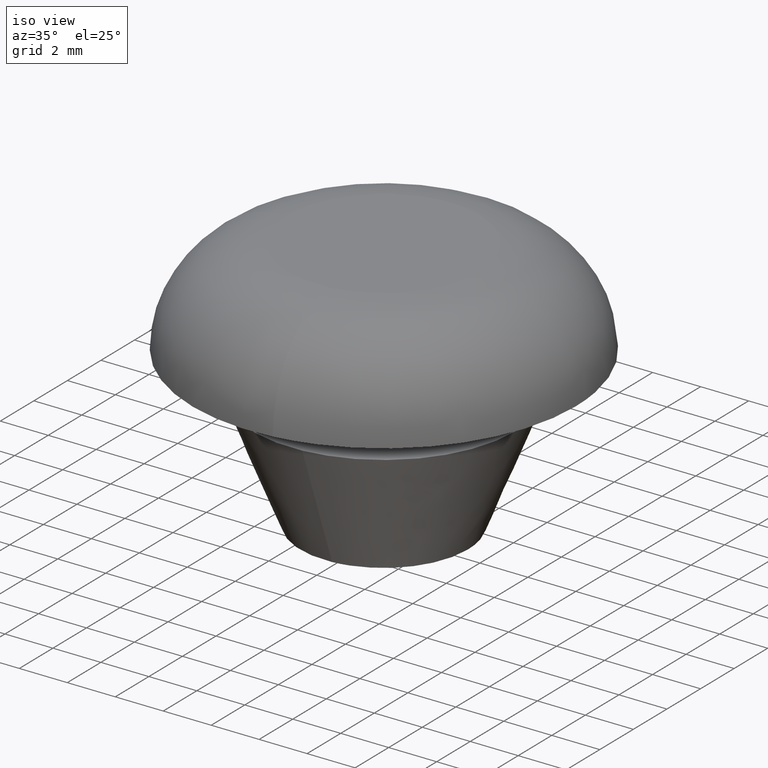
[diagram: clean part render]
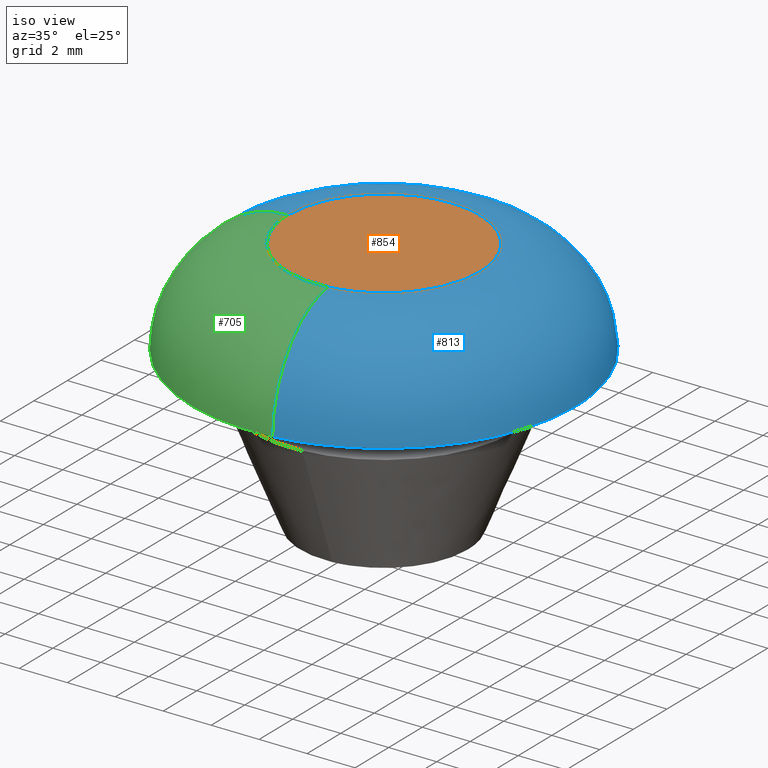
[diagram: same view with three faces highlighted in distinct colors, each labeled with its STEP entity id]
A machine part, iso view with three faces highlighted in distinct colors.
Their STEP definitions:

[orange] entity #854 — the highlighted face is a freeform B-spline surface patch.
#639=CARTESIAN_POINT('',(0.461853265926444,-3.973246979579745,10.600000000000000));
#640=VERTEX_POINT('',#639);
#641=CARTESIAN_POINT('',(-4.0,0.0,10.600000000000000));
#642=VERTEX_POINT('',#641);
#643=CARTESIAN_POINT('',(0.461853265926444,-3.973246979579744,10.599999999999998));
#644=CARTESIAN_POINT('',(0.231701472240553,-4.0,10.600000000000001));
#645=CARTESIAN_POINT('',(0.0,-4.0,10.600000000000000));
#646=CARTESIAN_POINT('',(-4.000000000000000,-4.000000000000000,10.600000000000000));
#647=CARTESIAN_POINT('',(-4.0,0.0,10.600000000000000));
#655=(BOUNDED_CURVE()B_SPLINE_CURVE(2,(#643,#644,#645,#646,#647),.UNSPECIFIED.,.F.,.U.)B_SPLINE_CURVE_WITH_KNOTS((3,2,3),(0.730000155452255,0.750000000000000,1.0),.UNSPECIFIED.)CURVE()GEOMETRIC_REPRESENTATION_ITEM()RATIONAL_B_SPLINE_CURVE((0.956886424158610,0.976568724618569,1.0,0.707106781186548,1.0))REPRESENTATION_ITEM(''));
#656=EDGE_CURVE('',#640,#642,#655,.T.);
#749=CARTESIAN_POINT('',(4.0,0.0,10.600000000000000));
#750=VERTEX_POINT('',#749);
#751=CARTESIAN_POINT('',(4.0,0.0,10.600000000000000));
#752=CARTESIAN_POINT('',(4.000000000000001,-3.561970098769044,10.600000000000000));
#753=CARTESIAN_POINT('',(0.461853265926444,-3.973246979579744,10.599999999999998));
#761=(BOUNDED_CURVE()B_SPLINE_CURVE(2,(#751,#752,#753),.UNSPECIFIED.,.F.,.U.)B_SPLINE_CURVE_WITH_KNOTS((3,3),(0.500000000000000,0.730000155452255),.UNSPECIFIED.)CURVE()GEOMETRIC_REPRESENTATION_ITEM()RATIONAL_B_SPLINE_CURVE((1.0,0.730538056567979,0.956886424158610))REPRESENTATION_ITEM(''));
#762=EDGE_CURVE('',#750,#640,#761,.T.);
#796=CARTESIAN_POINT('',(-4.0,0.0,10.600000000000000));
#797=CARTESIAN_POINT('',(-4.000000000000000,4.000000000000000,10.600000000000000));
#798=CARTESIAN_POINT('',(0.0,4.0,10.600000000000000));
#799=CARTESIAN_POINT('',(4.000000000000000,4.000000000000000,10.600000000000000));
#800=CARTESIAN_POINT('',(4.0,0.0,10.600000000000000));
#808=(BOUNDED_CURVE()B_SPLINE_CURVE(2,(#796,#797,#798,#799,#800),.UNSPECIFIED.,.F.,.U.)B_SPLINE_CURVE_WITH_KNOTS((3,2,3),(0.0,0.250000000000000,0.500000000000000),.UNSPECIFIED.)CURVE()GEOMETRIC_REPRESENTATION_ITEM()RATIONAL_B_SPLINE_CURVE((1.0,0.707106781186548,1.0,0.707106781186548,1.0))REPRESENTATION_ITEM(''));
#809=EDGE_CURVE('',#642,#750,#808,.T.);
#844=CARTESIAN_POINT('',(-4.399599984494448,-4.399577509031040,10.600000000000000));
#845=CARTESIAN_POINT('',(4.399600199071169,-4.399577509031040,10.600000000000000));
#846=CARTESIAN_POINT('',(-4.399599984494448,4.399599129781110,10.600000000000000));
#847=CARTESIAN_POINT('',(4.399600199071169,4.399599129781110,10.600000000000000));
#848=B_SPLINE_SURFACE_WITH_KNOTS('',1,1,((#844,#846),(#845,#847)),.UNSPECIFIED.,.F.,.F.,.U.,(2,2),(2,2),(0.0,8.799200183565617),(0.0,8.799176638812149),.UNSPECIFIED.);
#849=ORIENTED_EDGE('',*,*,#656,.F.);
#850=ORIENTED_EDGE('',*,*,#762,.F.);
#851=ORIENTED_EDGE('',*,*,#809,.F.);
#852=EDGE_LOOP('',(#849,#850,#851));
#853=FACE_OUTER_BOUND('',#852,.T.);
#854=ADVANCED_FACE('',(#853),#848,.T.);

[blue] entity #813 — the highlighted face is a freeform B-spline surface patch.
#639=CARTESIAN_POINT('',(0.461853265926444,-3.973246979579745,10.600000000000000));
#640=VERTEX_POINT('',#639);
#641=CARTESIAN_POINT('',(-4.0,0.0,10.600000000000000));
#642=VERTEX_POINT('',#641);
#658=CARTESIAN_POINT('',(-8.0,0.0,6.600000000000000));
#659=VERTEX_POINT('',#658);
#660=CARTESIAN_POINT('',(-8.0,0.0,6.600000000000000));
#661=CARTESIAN_POINT('',(-8.0,0.0,10.600000000000001));
#662=CARTESIAN_POINT('',(-3.999999999999999,0.0,10.600000000000000));
#670=(BOUNDED_CURVE()B_SPLINE_CURVE(2,(#660,#661,#662),.UNSPECIFIED.,.F.,.U.)B_SPLINE_CURVE_WITH_KNOTS((3,3),(0.0,0.250000000000000),.UNSPECIFIED.)CURVE()GEOMETRIC_REPRESENTATION_ITEM()RATIONAL_B_SPLINE_CURVE((1.0,0.707106781186547,1.0))REPRESENTATION_ITEM(''));
#671=EDGE_CURVE('',#659,#642,#670,.T.);
#673=CARTESIAN_POINT('',(0.923713520469362,-7.946493146797648,6.600000000000000));
#674=VERTEX_POINT('',#673);
#690=CARTESIAN_POINT('',(0.923713520469362,-7.946493146797648,6.600000000000001));
#691=CARTESIAN_POINT('',(0.923711851852247,-7.946493340760539,10.600000000003376));
#692=CARTESIAN_POINT('',(0.461853265926444,-3.973246979579745,10.599999999999998));
#700=(BOUNDED_CURVE()B_SPLINE_CURVE(2,(#690,#691,#692),.UNSPECIFIED.,.F.,.U.)B_SPLINE_CURVE_WITH_KNOTS((3,3),(0.0,0.250000000000149),.UNSPECIFIED.)CURVE()GEOMETRIC_REPRESENTATION_ITEM()RATIONAL_B_SPLINE_CURVE((0.956886118190660,0.676620662995720,0.956886118190994))REPRESENTATION_ITEM(''));
#701=EDGE_CURVE('',#674,#640,#700,.T.);
#706=CARTESIAN_POINT('',(-8.0,0.0,6.600000000000000));
#707=CARTESIAN_POINT('',(-8.0,0.0,10.600000000000000));
#708=CARTESIAN_POINT('',(-4.0,0.0,10.600000000000000));
#709=CARTESIAN_POINT('',(-3.856622449216822,0.0,10.599999999999998));
#710=CARTESIAN_POINT('',(-3.713612854403075,0.0,10.589734628122129));
#711=CARTESIAN_POINT('',(-8.0,8.0,6.599999999999999));
#712=CARTESIAN_POINT('',(-8.0,8.0,10.600000000000000));
#713=CARTESIAN_POINT('',(-4.000000000000000,4.000000000000000,10.600000000000000));
#714=CARTESIAN_POINT('',(-3.856622449216823,3.856622449216823,10.599999999999998));
#715=CARTESIAN_POINT('',(-3.713612854403077,3.713612854403077,10.589734628122129));
#716=CARTESIAN_POINT('',(0.0,8.0,6.600000000000000));
#717=CARTESIAN_POINT('',(0.0,8.0,10.600000000000000));
#718=CARTESIAN_POINT('',(0.0,4.0,10.600000000000000));
#719=CARTESIAN_POINT('',(0.0,3.856622449216822,10.599999999999998));
#720=CARTESIAN_POINT('',(0.0,3.713612854403075,10.589734628122129));
#721=CARTESIAN_POINT('',(8.0,8.0,6.599999999999999));
#722=CARTESIAN_POINT('',(8.0,8.0,10.600000000000000));
#723=CARTESIAN_POINT('',(4.000000000000000,4.000000000000000,10.600000000000000));
#724=CARTESIAN_POINT('',(3.856622449216823,3.856622449216823,10.599999999999998));
#725=CARTESIAN_POINT('',(3.713612854403077,3.713612854403077,10.589734628122129));
#726=CARTESIAN_POINT('',(8.0,0.0,6.600000000000000));
#727=CARTESIAN_POINT('',(8.0,0.0,10.600000000000000));
#728=CARTESIAN_POINT('',(4.0,0.0,10.600000000000000));
#729=CARTESIAN_POINT('',(3.856622449216822,0.0,10.599999999999998));
#730=CARTESIAN_POINT('',(3.713612854403075,0.0,10.589734628122129));
#731=CARTESIAN_POINT('',(8.0,-7.123933606615548,6.600000000000000));
#732=CARTESIAN_POINT('',(8.0,-7.123933606615550,10.600000000000003));
#733=CARTESIAN_POINT('',(4.000000000000000,-3.561966803307774,10.599999999999998));
#734=CARTESIAN_POINT('',(3.856622449216824,-3.434290284250462,10.600000000000000));
#735=CARTESIAN_POINT('',(3.713612854403077,-3.306941426930196,10.589734628122130));
#736=CARTESIAN_POINT('',(0.923713834616591,-7.946493110280654,6.600000000000000));
#737=CARTESIAN_POINT('',(0.923713834616592,-7.946493110280655,10.600000000000000));
#738=CARTESIAN_POINT('',(0.461856917308296,-3.973246555140328,10.599999999999998));
#739=CARTESIAN_POINT('',(0.445301938904313,-3.830827965206897,10.600000000000000));
#740=CARTESIAN_POINT('',(0.428789446252766,-3.688774870220465,10.589734628122132));
#748=(BOUNDED_SURFACE()B_SPLINE_SURFACE(2,2,((#706,#711,#716,#721,#726,#731,#736),(#707,#712,#717,#722,#727,#732,#737),(#708,#713,#718,#723,#728,#733,#738),(#709,#714,#719,#724,#729,#734,#739),(#710,#715,#720,#725,#730,#735,#740)),.UNSPECIFIED.,.F.,.F.,.U.)B_SPLINE_SURFACE_WITH_KNOTS((3,2,3),(3,2,2,3),(0.0,6.627416997969521,6.958456477018099),(0.0,13.254833995939039,26.509667991878079,38.704115268141997),.UNSPECIFIED.)GEOMETRIC_REPRESENTATION_ITEM()RATIONAL_B_SPLINE_SURFACE(((1.0,0.707106781186548,1.0,0.707106781186548,1.0,0.730538238691624,0.956886118190660),(0.707106781186548,0.500000000000000,0.707106781186548,0.500000000000000,0.707106781186548,0.516568542494924,0.676620662995888),(1.0,0.707106781186548,1.0,0.707106781186548,1.0,0.730538238691624,0.956886118190660),(0.985369983720268,0.696761797466280,0.985369983720268,0.696761797466280,0.985369983720268,0.719850452366599,0.942886858703681),(0.972201506066881,0.687450277619666,0.972201506066881,0.687450277619666,0.972201506066881,0.710230375895443,0.930286125239451)))REPRESENTATION_ITEM('')SURFACE());
#749=CARTESIAN_POINT('',(4.0,0.0,10.600000000000000));
#750=VERTEX_POINT('',#749);
#751=CARTESIAN_POINT('',(4.0,0.0,10.600000000000000));
#752=CARTESIAN_POINT('',(4.000000000000001,-3.561970098769044,10.600000000000000));
#753=CARTESIAN_POINT('',(0.461853265926444,-3.973246979579744,10.599999999999998));
#761=(BOUNDED_CURVE()B_SPLINE_CURVE(2,(#751,#752,#753),.UNSPECIFIED.,.F.,.U.)B_SPLINE_CURVE_WITH_KNOTS((3,3),(0.500000000000000,0.730000155452255),.UNSPECIFIED.)CURVE()GEOMETRIC_REPRESENTATION_ITEM()RATIONAL_B_SPLINE_CURVE((1.0,0.730538056567979,0.956886424158610))REPRESENTATION_ITEM(''));
#762=EDGE_CURVE('',#750,#640,#761,.T.);
#763=ORIENTED_EDGE('',*,*,#762,.T.);
#764=ORIENTED_EDGE('',*,*,#701,.F.);
#765=CARTESIAN_POINT('',(8.0,0.0,6.600000000000000));
#766=VERTEX_POINT('',#765);
#767=CARTESIAN_POINT('',(8.0,0.0,6.600000000000000));
#768=CARTESIAN_POINT('',(8.0,-7.123934173666448,6.599999999999999));
#769=CARTESIAN_POINT('',(0.923713520469362,-7.946493146797649,6.600000000000001));
#777=(BOUNDED_CURVE()B_SPLINE_CURVE(2,(#767,#768,#769),.UNSPECIFIED.,.F.,.U.)B_SPLINE_CURVE_WITH_KNOTS((3,3),(0.500000000000000,0.730000013374358),.UNSPECIFIED.)CURVE()GEOMETRIC_REPRESENTATION_ITEM()RATIONAL_B_SPLINE_CURVE((1.0,0.730538223022588,0.956886144514641))REPRESENTATION_ITEM(''));
#778=EDGE_CURVE('',#766,#674,#777,.T.);
#779=ORIENTED_EDGE('',*,*,#778,.F.);
#780=CARTESIAN_POINT('',(-8.0,0.0,6.600000000000000));
#781=CARTESIAN_POINT('',(-8.0,8.0,6.599999999999999));
#782=CARTESIAN_POINT('',(0.0,8.0,6.600000000000000));
#783=CARTESIAN_POINT('',(8.0,8.0,6.599999999999999));
#784=CARTESIAN_POINT('',(8.0,0.0,6.600000000000000));
#792=(BOUNDED_CURVE()B_SPLINE_CURVE(2,(#780,#781,#782,#783,#784),.UNSPECIFIED.,.F.,.U.)B_SPLINE_CURVE_WITH_KNOTS((3,2,3),(0.0,0.250000000000000,0.500000000000000),.UNSPECIFIED.)CURVE()GEOMETRIC_REPRESENTATION_ITEM()RATIONAL_B_SPLINE_CURVE((1.0,0.707106781186548,1.0,0.707106781186548,1.0))REPRESENTATION_ITEM(''));
#793=EDGE_CURVE('',#659,#766,#792,.T.);
#794=ORIENTED_EDGE('',*,*,#793,.F.);
#795=ORIENTED_EDGE('',*,*,#671,.T.);
#796=CARTESIAN_POINT('',(-4.0,0.0,10.600000000000000));
#797=CARTESIAN_POINT('',(-4.000000000000000,4.000000000000000,10.600000000000000));
#798=CARTESIAN_POINT('',(0.0,4.0,10.600000000000000));
#799=CARTESIAN_POINT('',(4.000000000000000,4.000000000000000,10.600000000000000));
#800=CARTESIAN_POINT('',(4.0,0.0,10.600000000000000));
#808=(BOUNDED_CURVE()B_SPLINE_CURVE(2,(#796,#797,#798,#799,#800),.UNSPECIFIED.,.F.,.U.)B_SPLINE_CURVE_WITH_KNOTS((3,2,3),(0.0,0.250000000000000,0.500000000000000),.UNSPECIFIED.)CURVE()GEOMETRIC_REPRESENTATION_ITEM()RATIONAL_B_SPLINE_CURVE((1.0,0.707106781186548,1.0,0.707106781186548,1.0))REPRESENTATION_ITEM(''));
#809=EDGE_CURVE('',#642,#750,#808,.T.);
#810=ORIENTED_EDGE('',*,*,#809,.T.);
#811=EDGE_LOOP('',(#763,#764,#779,#794,#795,#810));
#812=FACE_OUTER_BOUND('',#811,.T.);
#813=ADVANCED_FACE('',(#812),#748,.T.);

[green] entity #705 — the highlighted face is a freeform B-spline surface patch.
#606=CARTESIAN_POINT('',(0.923712938591187,-7.946493214436116,6.600000000000001));
#607=CARTESIAN_POINT('',(0.923712938591187,-7.946493214436115,10.599999999999998));
#608=CARTESIAN_POINT('',(0.461856469295593,-3.973246607218058,10.600000000000005));
#609=CARTESIAN_POINT('',(0.445301506950351,-3.830828015417933,10.599999999999998));
#610=CARTESIAN_POINT('',(0.428789030316334,-3.688774918569598,10.589734628122132));
#611=CARTESIAN_POINT('',(0.463406180240287,-8.0,6.599999999999999));
#612=CARTESIAN_POINT('',(0.463406180240287,-8.0,10.599999999999996));
#613=CARTESIAN_POINT('',(0.231703090120143,-4.0,10.599999999999998));
#614=CARTESIAN_POINT('',(0.223397834727563,-3.856622449216822,10.599999999999996));
#615=CARTESIAN_POINT('',(0.215113893468770,-3.713612854403076,10.589734628122132));
#616=CARTESIAN_POINT('',(0.0,-8.0,6.600000000000000));
#617=CARTESIAN_POINT('',(0.0,-8.0,10.600000000000000));
#618=CARTESIAN_POINT('',(0.0,-4.0,10.600000000000000));
#619=CARTESIAN_POINT('',(0.0,-3.856622449216822,10.599999999999998));
#620=CARTESIAN_POINT('',(0.0,-3.713612854403075,10.589734628122129));
#621=CARTESIAN_POINT('',(-8.0,-8.0,6.599999999999999));
#622=CARTESIAN_POINT('',(-8.0,-8.0,10.600000000000000));
#623=CARTESIAN_POINT('',(-4.000000000000000,-4.000000000000000,10.600000000000000));
#624=CARTESIAN_POINT('',(-3.856622449216823,-3.856622449216823,10.599999999999998));
#625=CARTESIAN_POINT('',(-3.713612854403077,-3.713612854403077,10.589734628122129));
#626=CARTESIAN_POINT('',(-8.0,0.0,6.600000000000000));
#627=CARTESIAN_POINT('',(-8.0,0.0,10.600000000000000));
#628=CARTESIAN_POINT('',(-4.0,0.0,10.600000000000000));
#629=CARTESIAN_POINT('',(-3.856622449216822,0.0,10.599999999999998));
#630=CARTESIAN_POINT('',(-3.713612854403075,0.0,10.589734628122129));
#638=(BOUNDED_SURFACE()B_SPLINE_SURFACE(2,2,((#606,#611,#616,#621,#626),(#607,#612,#617,#622,#627),(#608,#613,#618,#623,#628),(#609,#614,#619,#624,#629),(#610,#615,#620,#625,#630)),.UNSPECIFIED.,.F.,.F.,.U.)B_SPLINE_SURFACE_WITH_KNOTS((3,2,3),(3,2,3),(0.0,6.627416997969523,6.958456477018101),(0.0,1.060385708411543,14.315219704350580),.UNSPECIFIED.)GEOMETRIC_REPRESENTATION_ITEM()RATIONAL_B_SPLINE_SURFACE(((0.956886155731908,0.976568564840903,1.0,0.707106781186548,1.0),(0.676620689541559,0.690538254492617,0.707106781186548,0.500000000000000,0.707106781186548),(0.956886155731908,0.976568564840903,1.0,0.707106781186548,1.0),(0.942886895695701,0.962281350839006,0.985369983720268,0.696761797466280,0.985369983720268),(0.930286161737110,0.949421429515899,0.972201506066881,0.687450277619666,0.972201506066881)))REPRESENTATION_ITEM('')SURFACE());
#639=CARTESIAN_POINT('',(0.461853265926444,-3.973246979579745,10.600000000000000));
#640=VERTEX_POINT('',#639);
#641=CARTESIAN_POINT('',(-4.0,0.0,10.600000000000000));
#642=VERTEX_POINT('',#641);
#643=CARTESIAN_POINT('',(0.461853265926444,-3.973246979579744,10.599999999999998));
#644=CARTESIAN_POINT('',(0.231701472240553,-4.0,10.600000000000001));
#645=CARTESIAN_POINT('',(0.0,-4.0,10.600000000000000));
#646=CARTESIAN_POINT('',(-4.000000000000000,-4.000000000000000,10.600000000000000));
#647=CARTESIAN_POINT('',(-4.0,0.0,10.600000000000000));
#655=(BOUNDED_CURVE()B_SPLINE_CURVE(2,(#643,#644,#645,#646,#647),.UNSPECIFIED.,.F.,.U.)B_SPLINE_CURVE_WITH_KNOTS((3,2,3),(0.730000155452255,0.750000000000000,1.0),.UNSPECIFIED.)CURVE()GEOMETRIC_REPRESENTATION_ITEM()RATIONAL_B_SPLINE_CURVE((0.956886424158610,0.976568724618569,1.0,0.707106781186548,1.0))REPRESENTATION_ITEM(''));
#656=EDGE_CURVE('',#640,#642,#655,.T.);
#657=ORIENTED_EDGE('',*,*,#656,.T.);
#658=CARTESIAN_POINT('',(-8.0,0.0,6.600000000000000));
#659=VERTEX_POINT('',#658);
#660=CARTESIAN_POINT('',(-8.0,0.0,6.600000000000000));
#661=CARTESIAN_POINT('',(-8.0,0.0,10.600000000000001));
#662=CARTESIAN_POINT('',(-3.999999999999999,0.0,10.600000000000000));
#670=(BOUNDED_CURVE()B_SPLINE_CURVE(2,(#660,#661,#662),.UNSPECIFIED.,.F.,.U.)B_SPLINE_CURVE_WITH_KNOTS((3,3),(0.0,0.250000000000000),.UNSPECIFIED.)CURVE()GEOMETRIC_REPRESENTATION_ITEM()RATIONAL_B_SPLINE_CURVE((1.0,0.707106781186547,1.0))REPRESENTATION_ITEM(''));
#671=EDGE_CURVE('',#659,#642,#670,.T.);
#672=ORIENTED_EDGE('',*,*,#671,.F.);
#673=CARTESIAN_POINT('',(0.923713520469362,-7.946493146797648,6.600000000000000));
#674=VERTEX_POINT('',#673);
#675=CARTESIAN_POINT('',(0.923713520469362,-7.946493146797648,6.600000000000000));
#676=CARTESIAN_POINT('',(0.463406315459325,-8.0,6.600000000000001));
#677=CARTESIAN_POINT('',(0.0,-8.0,6.600000000000000));
#678=CARTESIAN_POINT('',(-8.0,-8.0,6.599999999999999));
#679=CARTESIAN_POINT('',(-8.0,0.0,6.600000000000000));
#687=(BOUNDED_CURVE()B_SPLINE_CURVE(2,(#675,#676,#677,#678,#679),.UNSPECIFIED.,.F.,.U.)B_SPLINE_CURVE_WITH_KNOTS((3,2,3),(0.730000013374359,0.750000000000000,1.0),.UNSPECIFIED.)CURVE()GEOMETRIC_REPRESENTATION_ITEM()RATIONAL_B_SPLINE_CURVE((0.956886144514643,0.976568558163960,1.0,0.707106781186548,1.0))REPRESENTATION_ITEM(''));
#688=EDGE_CURVE('',#674,#659,#687,.T.);
#689=ORIENTED_EDGE('',*,*,#688,.F.);
#690=CARTESIAN_POINT('',(0.923713520469362,-7.946493146797648,6.600000000000001));
#691=CARTESIAN_POINT('',(0.923711851852247,-7.946493340760539,10.600000000003376));
#692=CARTESIAN_POINT('',(0.461853265926444,-3.973246979579745,10.599999999999998));
#700=(BOUNDED_CURVE()B_SPLINE_CURVE(2,(#690,#691,#692),.UNSPECIFIED.,.F.,.U.)B_SPLINE_CURVE_WITH_KNOTS((3,3),(0.0,0.250000000000149),.UNSPECIFIED.)CURVE()GEOMETRIC_REPRESENTATION_ITEM()RATIONAL_B_SPLINE_CURVE((0.956886118190660,0.676620662995720,0.956886118190994))REPRESENTATION_ITEM(''));
#701=EDGE_CURVE('',#674,#640,#700,.T.);
#702=ORIENTED_EDGE('',*,*,#701,.T.);
#703=EDGE_LOOP('',(#657,#672,#689,#702));
#704=FACE_OUTER_BOUND('',#703,.T.);
#705=ADVANCED_FACE('',(#704),#638,.T.);